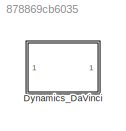
MODEL slx_878869cb6035
KIND library
CONFIG AbsTol = auto
CONFIG EnableMultiTasking = off
CONFIG FixedStep = auto
CONFIG MaxStep = auto
CONFIG MinStep = auto
CONFIG RelTol = 1e-3
CONFIG SampleTimeConstraint = Unconstrained
CONFIG SolverName = VariableStepAuto
CONFIG StartTime = 0.0
CONFIG StopTime = 10.0
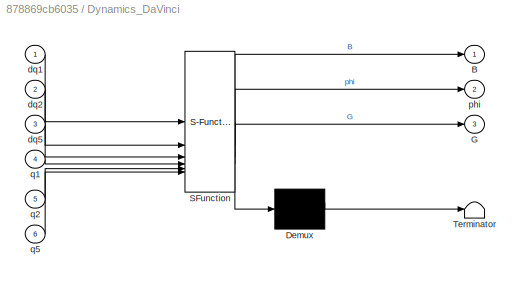
BLOCK [SubSystem] Dynamics_DaVinci
  ErrorFcn = Stateflow.Translate.translate
  LibrarySourceBlock = simulink/User-Defined\nFunctions/MATLAB Function
  PermitHierarchicalResolution = ExplicitOnly
  SFBlockType = MATLAB Function
  TreatAsAtomicUnit = on
BLOCK [Demux] Dynamics_DaVinci/ Demux 
  Outputs = 1
BLOCK [S-Function] Dynamics_DaVinci/ SFunction 
  EnableBusSupport = off
  FunctionName = sf_sfun
  PortCounts = [6 4]
  SFcnIsStateOwnerBlock = off
  SFunctionDeploymentMode = off
  Tag = Stateflow S-Function 2
BLOCK [Terminator] Dynamics_DaVinci/ Terminator 
BLOCK [Outport] Dynamics_DaVinci/B
BLOCK [Outport] Dynamics_DaVinci/G
  Port = 3
BLOCK [Inport] Dynamics_DaVinci/dq1
BLOCK [Inport] Dynamics_DaVinci/dq2
  Port = 2
BLOCK [Inport] Dynamics_DaVinci/dq5
  Port = 3
BLOCK [Outport] Dynamics_DaVinci/phi
  Port = 2
BLOCK [Inport] Dynamics_DaVinci/q1
  Port = 4
BLOCK [Inport] Dynamics_DaVinci/q2
  Port = 5
BLOCK [Inport] Dynamics_DaVinci/q5
  Port = 6
CHART Dynamics_DaVinci states=1 transitions=1
  STATE_LABEL 'eML_blk_kernel()'
  STATE_LABEL 'SCRIPT:\nfunction [B,phi,G] = Dynamics_DaVinci(dq1,dq2,dq5,q1,q2,q5)\n%#codegen\n\n%    This function was generated by the Symbolic Math Toolbox version 9.3.\n%    12-Jun-2023 16:22:42\n\n% dq1 = complex(dq1);  % if required to enforce complex operations\n% dq2 = complex(dq2);  % if required to enforce complex operations\n% dq5 = complex(dq5);  % if required to enforce complex operations\n% q1 = complex(q1)...<+3608ch>'
CHART  states=0 transitions=0
